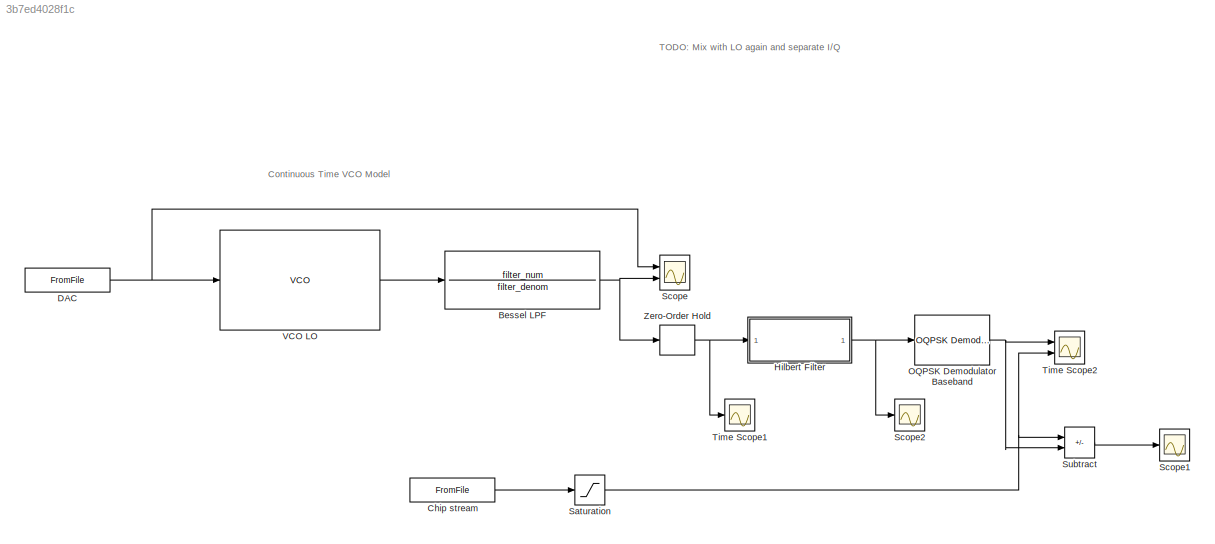
MODEL slx_3b7ed4028f1c
KIND model
CONFIG AbsTol = auto
CONFIG EnableMultiTasking = off
CONFIG FixedStep = auto
CONFIG MaxStep = auto
CONFIG MinStep = auto
CONFIG RelTol = 1e-3
CONFIG SampleTimeConstraint = Unconstrained
CONFIG SolverName = VariableStepAuto
CONFIG StartTime = 0.0
CONFIG StopTime = 0.05
WORKSPACE source: mxarray member
WORKSPACE adc_sample_time = 3.125e-08
WORKSPACE dac_sample_time = 3.125e-05
WORKSPACE filter_denom = [1 568351.158796 160323935148 2.97034292771e+16 4.03429632074e+21 4.24860324399e+26 3.58061921342e+31 2.45830508511e+36 1.38690715745e+41 6.43995335031e+45 2.44907426751e+50 7.53654211438e+54 ... (17 elements, 1x17)]
WORKSPACE filter_num = [0 0 0 0 0 0 0 0 0 0 0 0 ... (17 elements, 1x17)]
WORKSPACE vco_f0 = 2000
WORKSPACE vco_sens = 500
BLOCK [TransferFcn] Bessel LPF
  Denominator = filter_denom
  Numerator = filter_num
BLOCK [FromFile] Chip stream
  FileName = bit_in_data.mat
  SampleTime = dac_sample_time
BLOCK [FromFile] DAC
  FileName = vco_mod_data.mat
  SampleTime = dac_sample_time
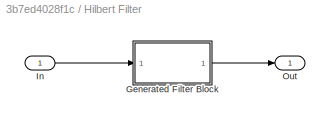
BLOCK [SubSystem] Hilbert Filter
  CopyFcn = fdesignblkfcn(gcbh, {'CopyFcn'});
  DialogController = fdesignblkfcn
  InitFcn = fdesignblkfcn(gcbh, {'InitFcn'});
  Ports = [1, 1]
  RequestExecContextInheritance = off
  UserDataPersistent = on
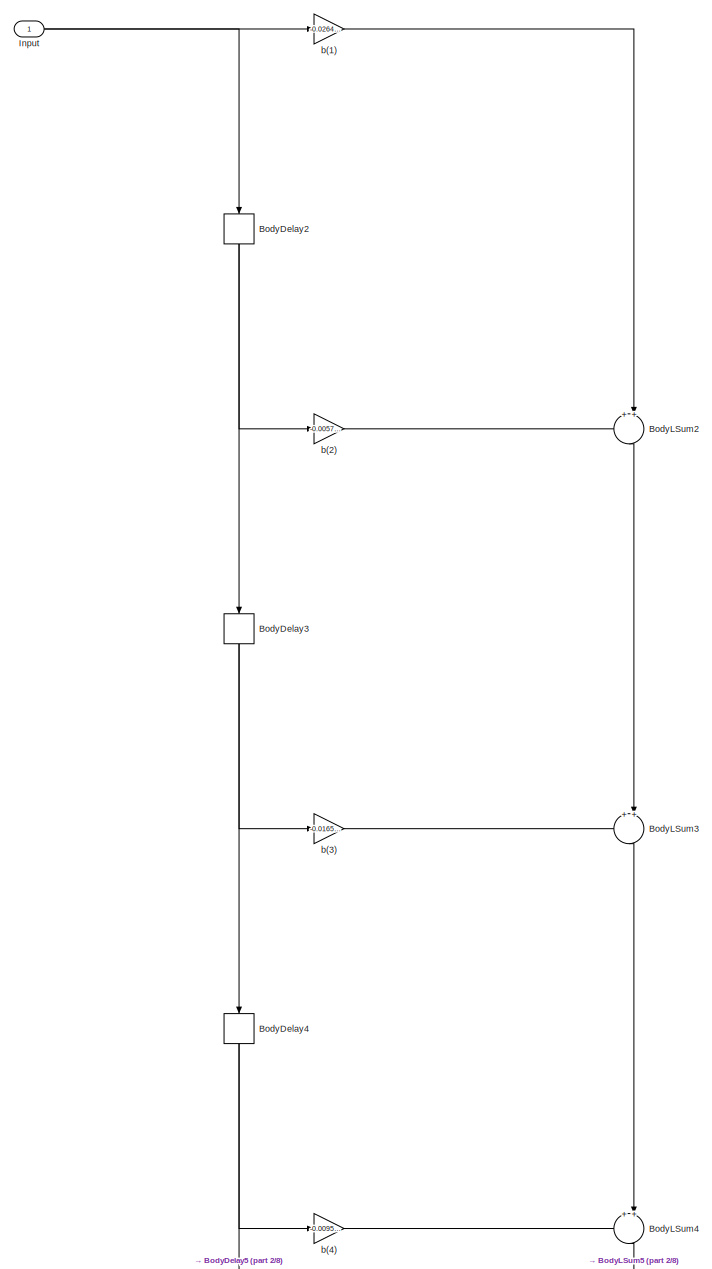
[diagram: Hilbert Filter/Generated Filter Block - part 1/8, full width, top band]
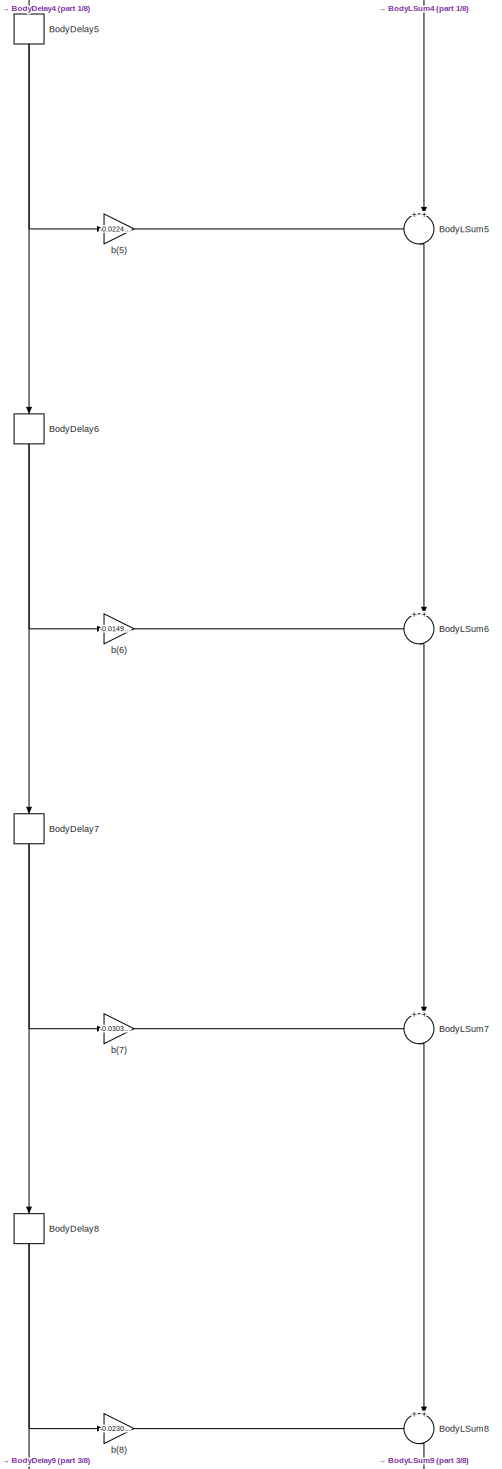
[diagram: Hilbert Filter/Generated Filter Block - part 2/8, top center region]
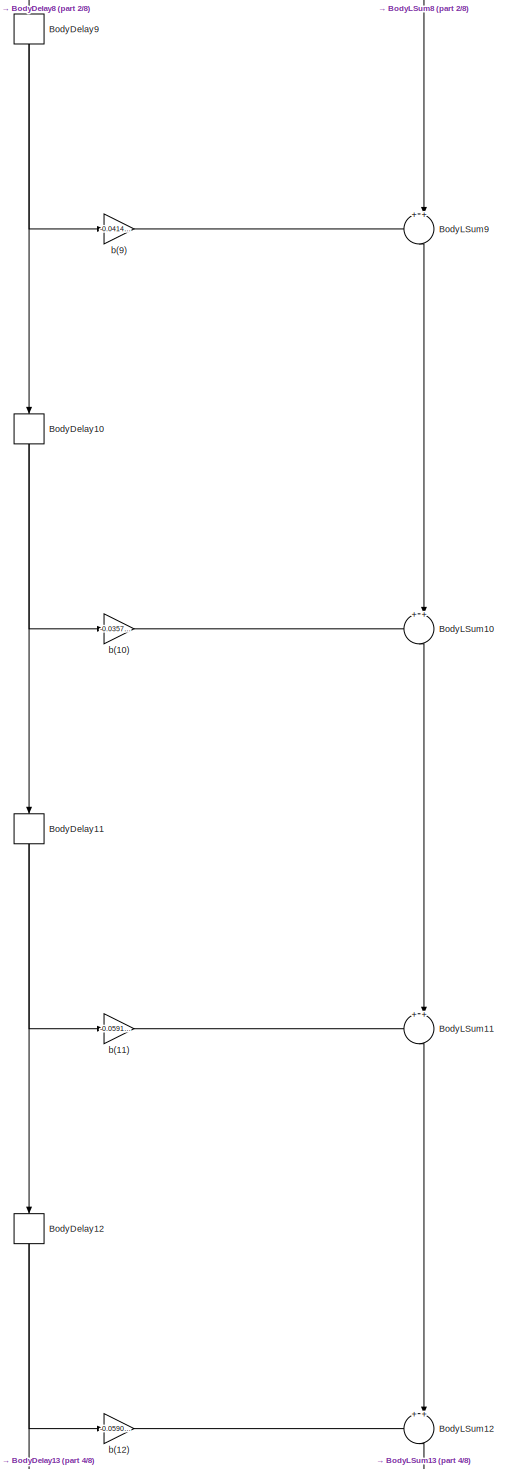
[diagram: Hilbert Filter/Generated Filter Block - part 3/8, top center region]
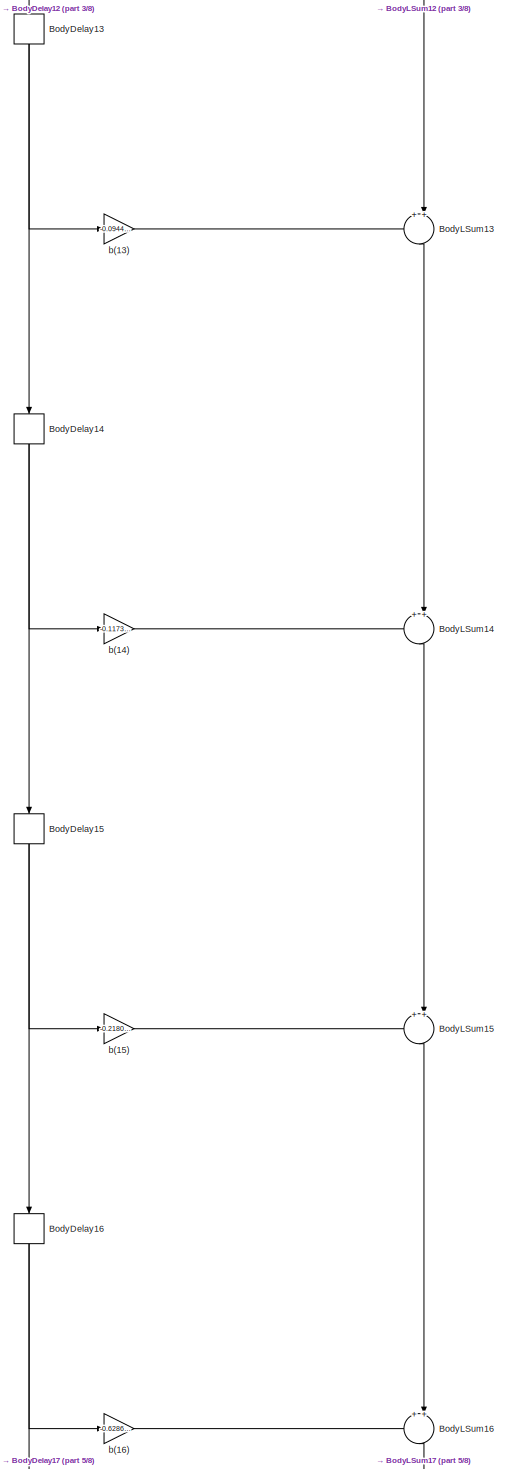
[diagram: Hilbert Filter/Generated Filter Block - part 4/8, central region]
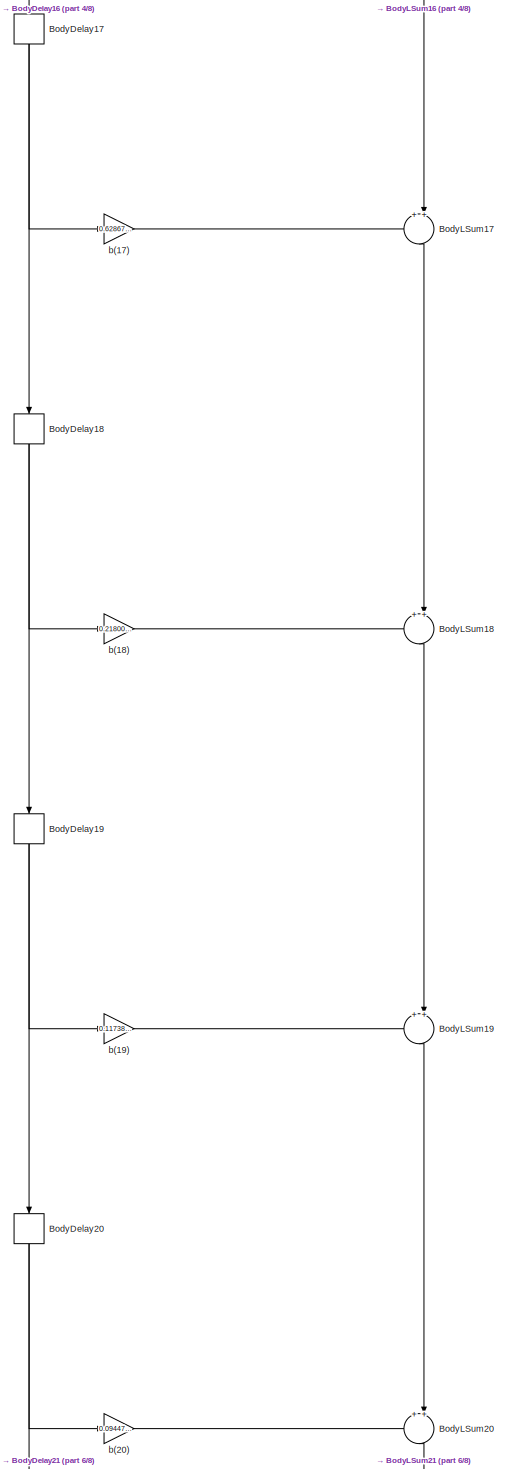
[diagram: Hilbert Filter/Generated Filter Block - part 5/8, central region]
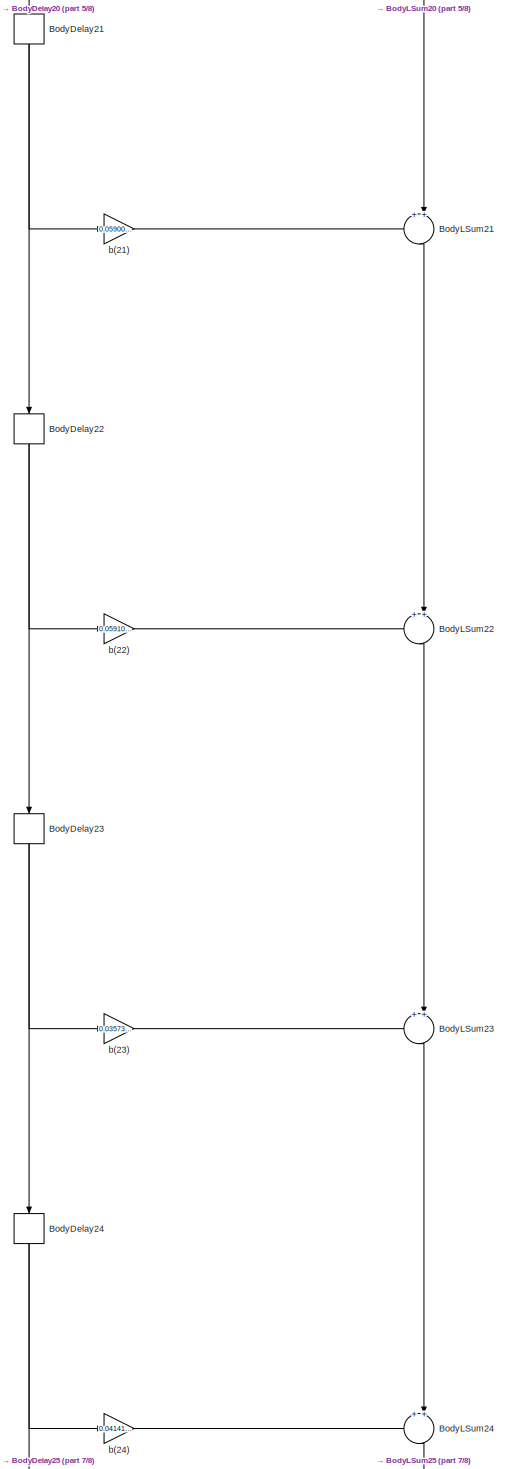
[diagram: Hilbert Filter/Generated Filter Block - part 6/8, bottom center region]
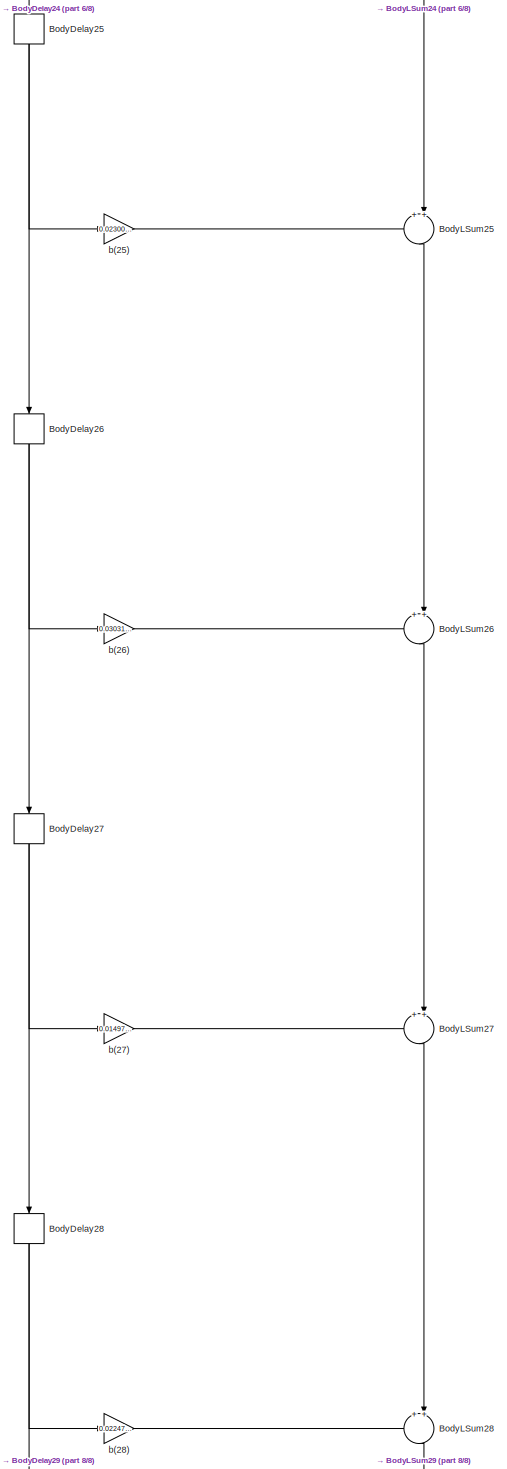
[diagram: Hilbert Filter/Generated Filter Block - part 7/8, bottom center region]
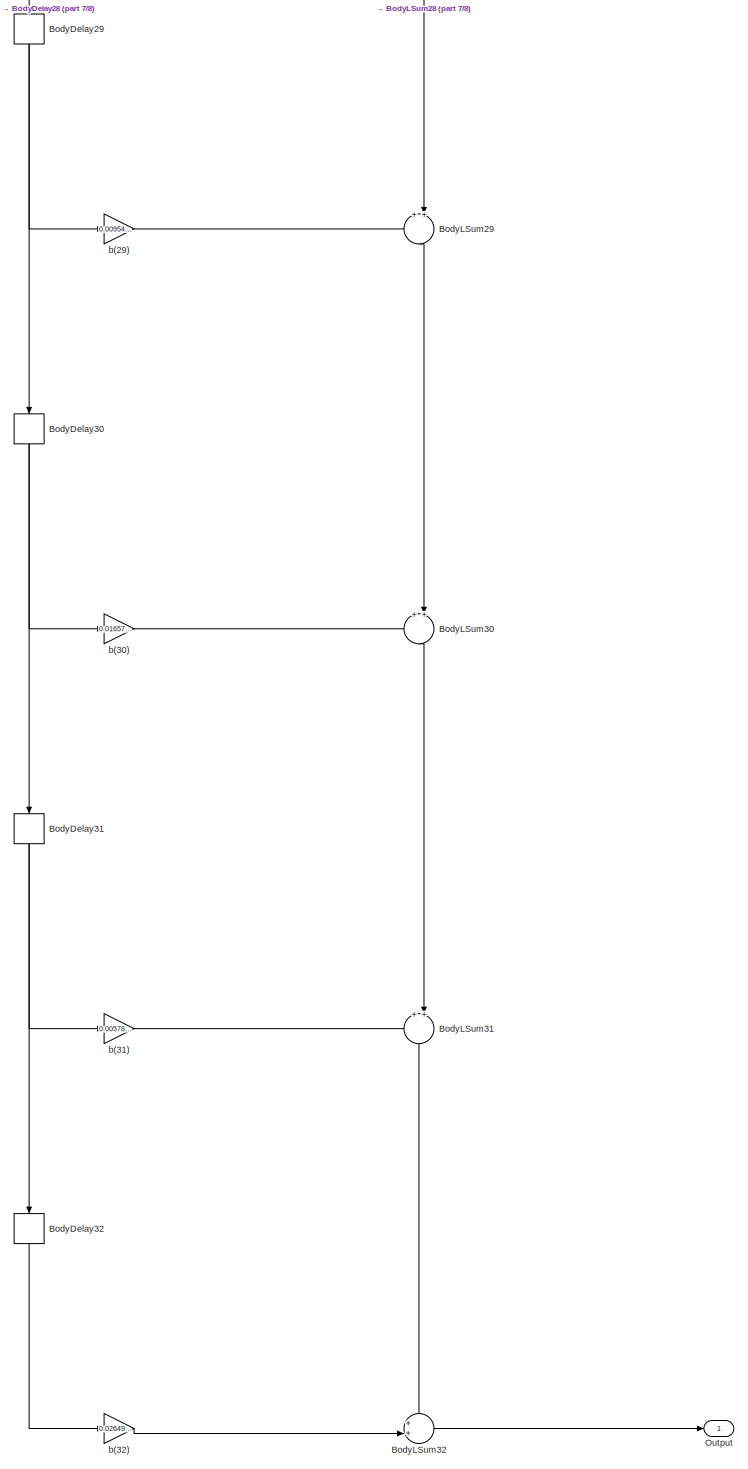
[diagram: Hilbert Filter/Generated Filter Block - part 8/8, full width, bottom band]
BLOCK [SubSystem] Hilbert Filter/Generated Filter Block
  ErrorFcn = dspFilterRealizedInBasicElemsAlgLoopErrFcnCallback
  Ports = [1, 1]
  RequestExecContextInheritance = off
  Tag = FilterWizardSubSystem
  UserDataPersistent = on
BLOCK [Delay] Hilbert Filter/Generated Filter Block/BodyDelay10
  DelayLength = 1
  InitialCondition = 0
  InputPortMap = u0
  InputProcessing = Columns as channels (frame based)
  NameLocation = right
  Ports = [1, 1]
BLOCK [Delay] Hilbert Filter/Generated Filter Block/BodyDelay11
  DelayLength = 1
  InitialCondition = 0
  InputPortMap = u0
  InputProcessing = Columns as channels (frame based)
  NameLocation = right
  Ports = [1, 1]
BLOCK [Delay] Hilbert Filter/Generated Filter Block/BodyDelay12
  DelayLength = 1
  InitialCondition = 0
  InputPortMap = u0
  InputProcessing = Columns as channels (frame based)
  NameLocation = right
  Ports = [1, 1]
BLOCK [Delay] Hilbert Filter/Generated Filter Block/BodyDelay13
  DelayLength = 1
  InitialCondition = 0
  InputPortMap = u0
  InputProcessing = Columns as channels (frame based)
  NameLocation = right
  Ports = [1, 1]
BLOCK [Delay] Hilbert Filter/Generated Filter Block/BodyDelay14
  DelayLength = 1
  InitialCondition = 0
  InputPortMap = u0
  InputProcessing = Columns as channels (frame based)
  NameLocation = right
  Ports = [1, 1]
BLOCK [Delay] Hilbert Filter/Generated Filter Block/BodyDelay15
  DelayLength = 1
  InitialCondition = 0
  InputPortMap = u0
  InputProcessing = Columns as channels (frame based)
  NameLocation = right
  Ports = [1, 1]
BLOCK [Delay] Hilbert Filter/Generated Filter Block/BodyDelay16
  DelayLength = 1
  InitialCondition = 0
  InputPortMap = u0
  InputProcessing = Columns as channels (frame based)
  NameLocation = right
  Ports = [1, 1]
BLOCK [Delay] Hilbert Filter/Generated Filter Block/BodyDelay17
  DelayLength = 1
  InitialCondition = 0
  InputPortMap = u0
  InputProcessing = Columns as channels (frame based)
  NameLocation = right
  Ports = [1, 1]
BLOCK [Delay] Hilbert Filter/Generated Filter Block/BodyDelay18
  DelayLength = 1
  InitialCondition = 0
  InputPortMap = u0
  InputProcessing = Columns as channels (frame based)
  NameLocation = right
  Ports = [1, 1]
BLOCK [Delay] Hilbert Filter/Generated Filter Block/BodyDelay19
  DelayLength = 1
  InitialCondition = 0
  InputPortMap = u0
  InputProcessing = Columns as channels (frame based)
  NameLocation = right
  Ports = [1, 1]
BLOCK [Delay] Hilbert Filter/Generated Filter Block/BodyDelay2
  DelayLength = 1
  InitialCondition = 0
  InputPortMap = u0
  InputProcessing = Columns as channels (frame based)
  NameLocation = right
  Ports = [1, 1]
BLOCK [Delay] Hilbert Filter/Generated Filter Block/BodyDelay20
  DelayLength = 1
  InitialCondition = 0
  InputPortMap = u0
  InputProcessing = Columns as channels (frame based)
  NameLocation = right
  Ports = [1, 1]
BLOCK [Delay] Hilbert Filter/Generated Filter Block/BodyDelay21
  DelayLength = 1
  InitialCondition = 0
  InputPortMap = u0
  InputProcessing = Columns as channels (frame based)
  NameLocation = right
  Ports = [1, 1]
BLOCK [Delay] Hilbert Filter/Generated Filter Block/BodyDelay22
  DelayLength = 1
  InitialCondition = 0
  InputPortMap = u0
  InputProcessing = Columns as channels (frame based)
  NameLocation = right
  Ports = [1, 1]
BLOCK [Delay] Hilbert Filter/Generated Filter Block/BodyDelay23
  DelayLength = 1
  InitialCondition = 0
  InputPortMap = u0
  InputProcessing = Columns as channels (frame based)
  NameLocation = right
  Ports = [1, 1]
BLOCK [Delay] Hilbert Filter/Generated Filter Block/BodyDelay24
  DelayLength = 1
  InitialCondition = 0
  InputPortMap = u0
  InputProcessing = Columns as channels (frame based)
  NameLocation = right
  Ports = [1, 1]
BLOCK [Delay] Hilbert Filter/Generated Filter Block/BodyDelay25
  DelayLength = 1
  InitialCondition = 0
  InputPortMap = u0
  InputProcessing = Columns as channels (frame based)
  NameLocation = right
  Ports = [1, 1]
BLOCK [Delay] Hilbert Filter/Generated Filter Block/BodyDelay26
  DelayLength = 1
  InitialCondition = 0
  InputPortMap = u0
  InputProcessing = Columns as channels (frame based)
  NameLocation = right
  Ports = [1, 1]
BLOCK [Delay] Hilbert Filter/Generated Filter Block/BodyDelay27
  DelayLength = 1
  InitialCondition = 0
  InputPortMap = u0
  InputProcessing = Columns as channels (frame based)
  NameLocation = right
  Ports = [1, 1]
BLOCK [Delay] Hilbert Filter/Generated Filter Block/BodyDelay28
  DelayLength = 1
  InitialCondition = 0
  InputPortMap = u0
  InputProcessing = Columns as channels (frame based)
  NameLocation = right
  Ports = [1, 1]
BLOCK [Delay] Hilbert Filter/Generated Filter Block/BodyDelay29
  DelayLength = 1
  InitialCondition = 0
  InputPortMap = u0
  InputProcessing = Columns as channels (frame based)
  NameLocation = right
  Ports = [1, 1]
BLOCK [Delay] Hilbert Filter/Generated Filter Block/BodyDelay3
  DelayLength = 1
  InitialCondition = 0
  InputPortMap = u0
  InputProcessing = Columns as channels (frame based)
  NameLocation = right
  Ports = [1, 1]
BLOCK [Delay] Hilbert Filter/Generated Filter Block/BodyDelay30
  DelayLength = 1
  InitialCondition = 0
  InputPortMap = u0
  InputProcessing = Columns as channels (frame based)
  NameLocation = right
  Ports = [1, 1]
BLOCK [Delay] Hilbert Filter/Generated Filter Block/BodyDelay31
  DelayLength = 1
  InitialCondition = 0
  InputPortMap = u0
  InputProcessing = Columns as channels (frame based)
  NameLocation = right
  Ports = [1, 1]
BLOCK [Delay] Hilbert Filter/Generated Filter Block/BodyDelay32
  DelayLength = 1
  InitialCondition = 0
  InputPortMap = u0
  InputProcessing = Columns as channels (frame based)
  NameLocation = right
  Ports = [1, 1]
BLOCK [Delay] Hilbert Filter/Generated Filter Block/BodyDelay4
  DelayLength = 1
  InitialCondition = 0
  InputPortMap = u0
  InputProcessing = Columns as channels (frame based)
  NameLocation = right
  Ports = [1, 1]
BLOCK [Delay] Hilbert Filter/Generated Filter Block/BodyDelay5
  DelayLength = 1
  InitialCondition = 0
  InputPortMap = u0
  InputProcessing = Columns as channels (frame based)
  NameLocation = right
  Ports = [1, 1]
BLOCK [Delay] Hilbert Filter/Generated Filter Block/BodyDelay6
  DelayLength = 1
  InitialCondition = 0
  InputPortMap = u0
  InputProcessing = Columns as channels (frame based)
  NameLocation = right
  Ports = [1, 1]
BLOCK [Delay] Hilbert Filter/Generated Filter Block/BodyDelay7
  DelayLength = 1
  InitialCondition = 0
  InputPortMap = u0
  InputProcessing = Columns as channels (frame based)
  NameLocation = right
  Ports = [1, 1]
BLOCK [Delay] Hilbert Filter/Generated Filter Block/BodyDelay8
  DelayLength = 1
  InitialCondition = 0
  InputPortMap = u0
  InputProcessing = Columns as channels (frame based)
  NameLocation = right
  Ports = [1, 1]
BLOCK [Delay] Hilbert Filter/Generated Filter Block/BodyDelay9
  DelayLength = 1
  InitialCondition = 0
  InputPortMap = u0
  InputProcessing = Columns as channels (frame based)
  NameLocation = right
  Ports = [1, 1]
BLOCK [Sum] Hilbert Filter/Generated Filter Block/BodyLSum10
  Inputs = ++|
  NameLocation = right
  OutDataTypeStr = Inherit: Same as first input
  Ports = [2, 1]
  RndMeth = Nearest
  SaturateOnIntegerOverflow = on
BLOCK [Sum] Hilbert Filter/Generated Filter Block/BodyLSum11
  Inputs = ++|
  NameLocation = right
  OutDataTypeStr = Inherit: Same as first input
  Ports = [2, 1]
  RndMeth = Nearest
  SaturateOnIntegerOverflow = on
BLOCK [Sum] Hilbert Filter/Generated Filter Block/BodyLSum12
  Inputs = ++|
  NameLocation = right
  OutDataTypeStr = Inherit: Same as first input
  Ports = [2, 1]
  RndMeth = Nearest
  SaturateOnIntegerOverflow = on
BLOCK [Sum] Hilbert Filter/Generated Filter Block/BodyLSum13
  Inputs = ++|
  NameLocation = right
  OutDataTypeStr = Inherit: Same as first input
  Ports = [2, 1]
  RndMeth = Nearest
  SaturateOnIntegerOverflow = on
BLOCK [Sum] Hilbert Filter/Generated Filter Block/BodyLSum14
  Inputs = ++|
  NameLocation = right
  OutDataTypeStr = Inherit: Same as first input
  Ports = [2, 1]
  RndMeth = Nearest
  SaturateOnIntegerOverflow = on
BLOCK [Sum] Hilbert Filter/Generated Filter Block/BodyLSum15
  Inputs = ++|
  NameLocation = right
  OutDataTypeStr = Inherit: Same as first input
  Ports = [2, 1]
  RndMeth = Nearest
  SaturateOnIntegerOverflow = on
BLOCK [Sum] Hilbert Filter/Generated Filter Block/BodyLSum16
  Inputs = ++|
  NameLocation = right
  OutDataTypeStr = Inherit: Same as first input
  Ports = [2, 1]
  RndMeth = Nearest
  SaturateOnIntegerOverflow = on
BLOCK [Sum] Hilbert Filter/Generated Filter Block/BodyLSum17
  Inputs = ++|
  NameLocation = right
  OutDataTypeStr = Inherit: Same as first input
  Ports = [2, 1]
  RndMeth = Nearest
  SaturateOnIntegerOverflow = on
BLOCK [Sum] Hilbert Filter/Generated Filter Block/BodyLSum18
  Inputs = ++|
  NameLocation = right
  OutDataTypeStr = Inherit: Same as first input
  Ports = [2, 1]
  RndMeth = Nearest
  SaturateOnIntegerOverflow = on
BLOCK [Sum] Hilbert Filter/Generated Filter Block/BodyLSum19
  Inputs = ++|
  NameLocation = right
  OutDataTypeStr = Inherit: Same as first input
  Ports = [2, 1]
  RndMeth = Nearest
  SaturateOnIntegerOverflow = on
BLOCK [Sum] Hilbert Filter/Generated Filter Block/BodyLSum2
  Inputs = ++|
  NameLocation = right
  OutDataTypeStr = Inherit: Same as first input
  Ports = [2, 1]
  RndMeth = Nearest
  SaturateOnIntegerOverflow = on
BLOCK [Sum] Hilbert Filter/Generated Filter Block/BodyLSum20
  Inputs = ++|
  NameLocation = right
  OutDataTypeStr = Inherit: Same as first input
  Ports = [2, 1]
  RndMeth = Nearest
  SaturateOnIntegerOverflow = on
BLOCK [Sum] Hilbert Filter/Generated Filter Block/BodyLSum21
  Inputs = ++|
  NameLocation = right
  OutDataTypeStr = Inherit: Same as first input
  Ports = [2, 1]
  RndMeth = Nearest
  SaturateOnIntegerOverflow = on
BLOCK [Sum] Hilbert Filter/Generated Filter Block/BodyLSum22
  Inputs = ++|
  NameLocation = right
  OutDataTypeStr = Inherit: Same as first input
  Ports = [2, 1]
  RndMeth = Nearest
  SaturateOnIntegerOverflow = on
BLOCK [Sum] Hilbert Filter/Generated Filter Block/BodyLSum23
  Inputs = ++|
  NameLocation = right
  OutDataTypeStr = Inherit: Same as first input
  Ports = [2, 1]
  RndMeth = Nearest
  SaturateOnIntegerOverflow = on
BLOCK [Sum] Hilbert Filter/Generated Filter Block/BodyLSum24
  Inputs = ++|
  NameLocation = right
  OutDataTypeStr = Inherit: Same as first input
  Ports = [2, 1]
  RndMeth = Nearest
  SaturateOnIntegerOverflow = on
BLOCK [Sum] Hilbert Filter/Generated Filter Block/BodyLSum25
  Inputs = ++|
  NameLocation = right
  OutDataTypeStr = Inherit: Same as first input
  Ports = [2, 1]
  RndMeth = Nearest
  SaturateOnIntegerOverflow = on
BLOCK [Sum] Hilbert Filter/Generated Filter Block/BodyLSum26
  Inputs = ++|
  NameLocation = right
  OutDataTypeStr = Inherit: Same as first input
  Ports = [2, 1]
  RndMeth = Nearest
  SaturateOnIntegerOverflow = on
BLOCK [Sum] Hilbert Filter/Generated Filter Block/BodyLSum27
  Inputs = ++|
  NameLocation = right
  OutDataTypeStr = Inherit: Same as first input
  Ports = [2, 1]
  RndMeth = Nearest
  SaturateOnIntegerOverflow = on
BLOCK [Sum] Hilbert Filter/Generated Filter Block/BodyLSum28
  Inputs = ++|
  NameLocation = right
  OutDataTypeStr = Inherit: Same as first input
  Ports = [2, 1]
  RndMeth = Nearest
  SaturateOnIntegerOverflow = on
BLOCK [Sum] Hilbert Filter/Generated Filter Block/BodyLSum29
  Inputs = ++|
  NameLocation = right
  OutDataTypeStr = Inherit: Same as first input
  Ports = [2, 1]
  RndMeth = Nearest
  SaturateOnIntegerOverflow = on
BLOCK [Sum] Hilbert Filter/Generated Filter Block/BodyLSum3
  Inputs = ++|
  NameLocation = right
  OutDataTypeStr = Inherit: Same as first input
  Ports = [2, 1]
  RndMeth = Nearest
  SaturateOnIntegerOverflow = on
BLOCK [Sum] Hilbert Filter/Generated Filter Block/BodyLSum30
  Inputs = ++|
  NameLocation = right
  OutDataTypeStr = Inherit: Same as first input
  Ports = [2, 1]
  RndMeth = Nearest
  SaturateOnIntegerOverflow = on
BLOCK [Sum] Hilbert Filter/Generated Filter Block/BodyLSum31
  Inputs = ++|
  NameLocation = right
  OutDataTypeStr = Inherit: Same as first input
  Ports = [2, 1]
  RndMeth = Nearest
  SaturateOnIntegerOverflow = on
BLOCK [Sum] Hilbert Filter/Generated Filter Block/BodyLSum32
  Inputs = ++|
  OutDataTypeStr = Inherit: Same as first input
  Ports = [2, 1]
  RndMeth = Nearest
  SaturateOnIntegerOverflow = on
BLOCK [Sum] Hilbert Filter/Generated Filter Block/BodyLSum4
  Inputs = ++|
  NameLocation = right
  OutDataTypeStr = Inherit: Same as first input
  Ports = [2, 1]
  RndMeth = Nearest
  SaturateOnIntegerOverflow = on
BLOCK [Sum] Hilbert Filter/Generated Filter Block/BodyLSum5
  Inputs = ++|
  NameLocation = right
  OutDataTypeStr = Inherit: Same as first input
  Ports = [2, 1]
  RndMeth = Nearest
  SaturateOnIntegerOverflow = on
BLOCK [Sum] Hilbert Filter/Generated Filter Block/BodyLSum6
  Inputs = ++|
  NameLocation = right
  OutDataTypeStr = Inherit: Same as first input
  Ports = [2, 1]
  RndMeth = Nearest
  SaturateOnIntegerOverflow = on
BLOCK [Sum] Hilbert Filter/Generated Filter Block/BodyLSum7
  Inputs = ++|
  NameLocation = right
  OutDataTypeStr = Inherit: Same as first input
  Ports = [2, 1]
  RndMeth = Nearest
  SaturateOnIntegerOverflow = on
BLOCK [Sum] Hilbert Filter/Generated Filter Block/BodyLSum8
  Inputs = ++|
  NameLocation = right
  OutDataTypeStr = Inherit: Same as first input
  Ports = [2, 1]
  RndMeth = Nearest
  SaturateOnIntegerOverflow = on
BLOCK [Sum] Hilbert Filter/Generated Filter Block/BodyLSum9
  Inputs = ++|
  NameLocation = right
  OutDataTypeStr = Inherit: Same as first input
  Ports = [2, 1]
  RndMeth = Nearest
  SaturateOnIntegerOverflow = on
BLOCK [Inport] Hilbert Filter/Generated Filter Block/Input
BLOCK [Outport] Hilbert Filter/Generated Filter Block/Output
BLOCK [Gain] Hilbert Filter/Generated Filter Block/b(1)
  Gain = -0.0264904290443319507
  OutDataTypeStr = Inherit: Same as input
  ParamDataTypeStr = double
  RndMeth = Nearest
  SaturateOnIntegerOverflow = on
BLOCK [Gain] Hilbert Filter/Generated Filter Block/b(10)
  Gain = -0.0357304498389633407
  OutDataTypeStr = Inherit: Same as input
  ParamDataTypeStr = double
  RndMeth = Nearest
  SaturateOnIntegerOverflow = on
BLOCK [Gain] Hilbert Filter/Generated Filter Block/b(11)
  Gain = -0.0591029562013294374
  OutDataTypeStr = Inherit: Same as input
  ParamDataTypeStr = double
  RndMeth = Nearest
  SaturateOnIntegerOverflow = on
BLOCK [Gain] Hilbert Filter/Generated Filter Block/b(12)
  Gain = -0.0590042917501434894
  OutDataTypeStr = Inherit: Same as input
  ParamDataTypeStr = double
  RndMeth = Nearest
  SaturateOnIntegerOverflow = on
BLOCK [Gain] Hilbert Filter/Generated Filter Block/b(13)
  Gain = -0.0944766625235278767
  OutDataTypeStr = Inherit: Same as input
  ParamDataTypeStr = double
  RndMeth = Nearest
  SaturateOnIntegerOverflow = on
BLOCK [Gain] Hilbert Filter/Generated Filter Block/b(14)
  Gain = -0.117380450328411545
  OutDataTypeStr = Inherit: Same as input
  ParamDataTypeStr = double
  RndMeth = Nearest
  SaturateOnIntegerOverflow = on
BLOCK [Gain] Hilbert Filter/Generated Filter Block/b(15)
  Gain = -0.218002774454905457
  OutDataTypeStr = Inherit: Same as input
  ParamDataTypeStr = double
  RndMeth = Nearest
  SaturateOnIntegerOverflow = on
BLOCK [Gain] Hilbert Filter/Generated Filter Block/b(16)
  Gain = -0.628672071043775427
  OutDataTypeStr = Inherit: Same as input
  ParamDataTypeStr = double
  RndMeth = Nearest
  SaturateOnIntegerOverflow = on
BLOCK [Gain] Hilbert Filter/Generated Filter Block/b(17)
  Gain = 0.628672071043775427
  OutDataTypeStr = Inherit: Same as input
  ParamDataTypeStr = double
  RndMeth = Nearest
  SaturateOnIntegerOverflow = on
BLOCK [Gain] Hilbert Filter/Generated Filter Block/b(18)
  Gain = 0.218002774454905457
  OutDataTypeStr = Inherit: Same as input
  ParamDataTypeStr = double
  RndMeth = Nearest
  SaturateOnIntegerOverflow = on
BLOCK [Gain] Hilbert Filter/Generated Filter Block/b(19)
  Gain = 0.117380450328411545
  OutDataTypeStr = Inherit: Same as input
  ParamDataTypeStr = double
  RndMeth = Nearest
  SaturateOnIntegerOverflow = on
BLOCK [Gain] Hilbert Filter/Generated Filter Block/b(2)
  Gain = -0.00578548312773453227
  OutDataTypeStr = Inherit: Same as input
  ParamDataTypeStr = double
  RndMeth = Nearest
  SaturateOnIntegerOverflow = on
BLOCK [Gain] Hilbert Filter/Generated Filter Block/b(20)
  Gain = 0.0944766625235278767
  OutDataTypeStr = Inherit: Same as input
  ParamDataTypeStr = double
  RndMeth = Nearest
  SaturateOnIntegerOverflow = on
BLOCK [Gain] Hilbert Filter/Generated Filter Block/b(21)
  Gain = 0.0590042917501434894
  OutDataTypeStr = Inherit: Same as input
  ParamDataTypeStr = double
  RndMeth = Nearest
  SaturateOnIntegerOverflow = on
BLOCK [Gain] Hilbert Filter/Generated Filter Block/b(22)
  Gain = 0.0591029562013294374
  OutDataTypeStr = Inherit: Same as input
  ParamDataTypeStr = double
  RndMeth = Nearest
  SaturateOnIntegerOverflow = on
BLOCK [Gain] Hilbert Filter/Generated Filter Block/b(23)
  Gain = 0.0357304498389633407
  OutDataTypeStr = Inherit: Same as input
  ParamDataTypeStr = double
  RndMeth = Nearest
  SaturateOnIntegerOverflow = on
BLOCK [Gain] Hilbert Filter/Generated Filter Block/b(24)
  Gain = 0.0414133038453040614
  OutDataTypeStr = Inherit: Same as input
  ParamDataTypeStr = double
  RndMeth = Nearest
  SaturateOnIntegerOverflow = on
BLOCK [Gain] Hilbert Filter/Generated Filter Block/b(25)
  Gain = 0.0230062822492094476
  OutDataTypeStr = Inherit: Same as input
  ParamDataTypeStr = double
  RndMeth = Nearest
  SaturateOnIntegerOverflow = on
BLOCK [Gain] Hilbert Filter/Generated Filter Block/b(26)
  Gain = 0.0303155785530878213
  OutDataTypeStr = Inherit: Same as input
  ParamDataTypeStr = double
  RndMeth = Nearest
  SaturateOnIntegerOverflow = on
BLOCK [Gain] Hilbert Filter/Generated Filter Block/b(27)
  Gain = 0.0149702815150128121
  OutDataTypeStr = Inherit: Same as input
  ParamDataTypeStr = double
  RndMeth = Nearest
  SaturateOnIntegerOverflow = on
BLOCK [Gain] Hilbert Filter/Generated Filter Block/b(28)
  Gain = 0.0224707305408065675
  OutDataTypeStr = Inherit: Same as input
  ParamDataTypeStr = double
  RndMeth = Nearest
  SaturateOnIntegerOverflow = on
BLOCK [Gain] Hilbert Filter/Generated Filter Block/b(29)
  Gain = 0.00954151864337953598
  OutDataTypeStr = Inherit: Same as input
  ParamDataTypeStr = double
  RndMeth = Nearest
  SaturateOnIntegerOverflow = on
BLOCK [Gain] Hilbert Filter/Generated Filter Block/b(3)
  Gain = -0.0165782174088848142
  OutDataTypeStr = Inherit: Same as input
  ParamDataTypeStr = double
  RndMeth = Nearest
  SaturateOnIntegerOverflow = on
BLOCK [Gain] Hilbert Filter/Generated Filter Block/b(30)
  Gain = 0.0165782174088848142
  OutDataTypeStr = Inherit: Same as input
  ParamDataTypeStr = double
  RndMeth = Nearest
  SaturateOnIntegerOverflow = on
BLOCK [Gain] Hilbert Filter/Generated Filter Block/b(31)
  Gain = 0.00578548312773453227
  OutDataTypeStr = Inherit: Same as input
  ParamDataTypeStr = double
  RndMeth = Nearest
  SaturateOnIntegerOverflow = on
BLOCK [Gain] Hilbert Filter/Generated Filter Block/b(32)
  Gain = 0.0264904290443319507
  OutDataTypeStr = Inherit: Same as input
  ParamDataTypeStr = double
  RndMeth = Nearest
  SaturateOnIntegerOverflow = on
BLOCK [Gain] Hilbert Filter/Generated Filter Block/b(4)
  Gain = -0.00954151864337953598
  OutDataTypeStr = Inherit: Same as input
  ParamDataTypeStr = double
  RndMeth = Nearest
  SaturateOnIntegerOverflow = on
BLOCK [Gain] Hilbert Filter/Generated Filter Block/b(5)
  Gain = -0.0224707305408065675
  OutDataTypeStr = Inherit: Same as input
  ParamDataTypeStr = double
  RndMeth = Nearest
  SaturateOnIntegerOverflow = on
BLOCK [Gain] Hilbert Filter/Generated Filter Block/b(6)
  Gain = -0.0149702815150128121
  OutDataTypeStr = Inherit: Same as input
  ParamDataTypeStr = double
  RndMeth = Nearest
  SaturateOnIntegerOverflow = on
BLOCK [Gain] Hilbert Filter/Generated Filter Block/b(7)
  Gain = -0.0303155785530878213
  OutDataTypeStr = Inherit: Same as input
  ParamDataTypeStr = double
  RndMeth = Nearest
  SaturateOnIntegerOverflow = on
BLOCK [Gain] Hilbert Filter/Generated Filter Block/b(8)
  Gain = -0.0230062822492094476
  OutDataTypeStr = Inherit: Same as input
  ParamDataTypeStr = double
  RndMeth = Nearest
  SaturateOnIntegerOverflow = on
BLOCK [Gain] Hilbert Filter/Generated Filter Block/b(9)
  Gain = -0.0414133038453040614
  OutDataTypeStr = Inherit: Same as input
  ParamDataTypeStr = double
  RndMeth = Nearest
  SaturateOnIntegerOverflow = on
BLOCK [Inport] Hilbert Filter/In
BLOCK [Outport] Hilbert Filter/Out
  VectorParamsAs1DForOutWhenUnconnected = off
BLOCK [Reference] OQPSK Demodulator Baseband  REF=commdigbbndpm3/OQPSK
Demodulator
Baseband
  Ports = [1, 1]
  SourceBlock = commdigbbndpm3/OQPSK\nDemodulator\nBaseband
  SourceProductBaseCode = CM
  SourceType = OQPSK Demodulator Baseband
  UserDataPersistent = on
BLOCK [Saturate] Saturation
  LowerLimit = 0
  UpperLimit = 1
BLOCK [Scope] Scope
  Floating = off
  NumInputPorts = 2
  Ports = [2]
  ScopeSpecificationString = Simulink.scopes.TimeScopeBlockCfg('CurrentConfiguration', extmgr.ConfigurationSet(extmgr.Configuration('Core','General UI',true),extmgr.Configuration('Core','Source UI',true),extmgr.Configuration('Sources','WiredSimulink',true),extmgr.Configuration('Visuals','Time Domain',true,'SerializedDisplays',{struct('MinYLimReal','-1.21485','MaxYLimReal','1.24617','YLabelReal','','MinYLimMag','0.00000','MaxY...<+1450ch>
BLOCK [Scope] Scope1
  Floating = off
  NumInputPorts = 1
  Ports = [1]
  ScopeSpecificationString = Simulink.scopes.TimeScopeBlockCfg('CurrentConfiguration', extmgr.ConfigurationSet(extmgr.Configuration('Core','General UI',true),extmgr.Configuration('Core','Source UI',true),extmgr.Configuration('Sources','WiredSimulink',true,'DataLoggingVariableName','ScopeData3'),extmgr.Configuration('Visuals','Time Domain',true,'SerializedDisplays',{struct('MinYLimReal','-1.25','MaxYLimReal','1.25','YLabelReal...<+1418ch>
BLOCK [Scope] Scope2
  Floating = off
  NumInputPorts = 1
  Ports = [1]
  ScopeSpecificationString = Simulink.scopes.TimeScopeBlockCfg('CurrentConfiguration', extmgr.ConfigurationSet(extmgr.Configuration('Core','General UI',true),extmgr.Configuration('Core','Source UI',true),extmgr.Configuration('Sources','WiredSimulink',true,'DataLoggingVariableName','ScopeData4'),extmgr.Configuration('Visuals','Time Domain',true,'SerializedDisplays',{struct('MinYLimReal','-0.90115','MaxYLimReal','0.88271','YLab...<+1402ch>
BLOCK [Sum] Subtract
  IconShape = rectangular
  Inputs = +-
  Ports = [2, 1]
BLOCK [Scope] Time Scope1
  DefaultConfigurationName = spbscopes.TimeScopeBlockCfg
  Floating = off
  NumInputPorts = 1
  Ports = [1]
  ScopeSpecificationString = spbscopes.TimeScopeBlockCfg('CurrentConfiguration', extmgr.ConfigurationSet(extmgr.Configuration('Core','General UI',true),extmgr.Configuration('Core','Source UI',true),extmgr.Configuration('Sources','WiredSimulink',true,'DataLoggingVariableName','ScopeData2'),extmgr.Configuration('Visuals','Time Domain',true,'DisplayPropertyDefaults',struct('MinYLimReal','-0.12504','MaxYLimReal','1.09897','YLabel...<+1422ch>
  UserDataPersistent = on
BLOCK [Scope] Time Scope2
  DefaultConfigurationName = spbscopes.TimeScopeBlockCfg
  Floating = off
  NumInputPorts = 2
  Ports = [2]
  ScopeSpecificationString = spbscopes.TimeScopeBlockCfg('CurrentConfiguration', extmgr.ConfigurationSet(extmgr.Configuration('Core','General UI',true),extmgr.Configuration('Core','Source UI',true),extmgr.Configuration('Sources','WiredSimulink',true,'DataLoggingVariableName','ScopeData1'),extmgr.Configuration('Visuals','Time Domain',true,'DisplayPropertyDefaults',struct('MinYLimReal','-0.0427','MaxYLimReal','1.01662','YLabelR...<+1465ch>
  UserDataPersistent = on
BLOCK [Reference] VCO LO  REF=msbPllFoundation/VCO
  Ports = [1, 1]
  SourceBlock = msbPllFoundation/VCO
  SourceProductBaseCode = AM
  SourceType = VCO
BLOCK [ZeroOrderHold] Zero-Order Hold
  SampleTime = dac_sample_time
ANNOTATION (root): Continuous Time VCO Model
ANNOTATION (root): TODO: Mix with LO again and separate I/Q
NET Bessel LPF:1 -> Scope:2, Zero-Order Hold:1
LINE Chip stream:1 -> Saturation:1
NET DAC:1 -> Scope:1, VCO LO:1
NET Hilbert Filter:1 -> OQPSK Demodulator Baseband:1, Scope2:1
NET OQPSK Demodulator Baseband:1 -> Subtract:2, Time Scope2:1
NET Saturation:1 -> Subtract:1, Time Scope2:2
LINE Subtract:1 -> Scope1:1
LINE VCO LO:1 -> Bessel LPF:1
NET Zero-Order Hold:1 -> Hilbert Filter:1, Time Scope1:1
note: NET lines group one-source signal fan-out (src -> all destinations, sorted); 1:1 wires keep LINE
